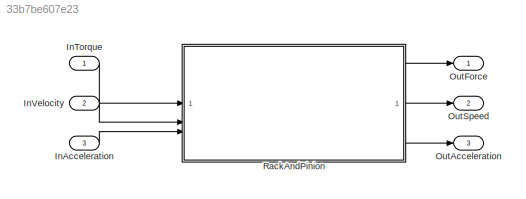
MODEL slx_33b7be607e23
KIND model
CONFIG AbsTol = auto
CONFIG EnableMultiTasking = off
CONFIG FixedStep = auto
CONFIG MaxStep = auto
CONFIG MinStep = auto
CONFIG RelTol = 1e-3
CONFIG SampleTimeConstraint = Unconstrained
CONFIG SolverName = VariableStepAuto
CONFIG StartTime = 0.0
CONFIG StopTime = 10.0
BLOCK [Inport] InAcceleration
  Port = 3
BLOCK [Inport] InTorque
BLOCK [Inport] InVelocity
  Port = 2
BLOCK [Outport] OutAcceleration
  Port = 3
BLOCK [Outport] OutForce
BLOCK [Outport] OutSpeed
  Port = 2
BLOCK [SubSystem] RackAndPinion
  J_pinion = 1e-6
  ReferencedSubsystem = RackAndPinion
  i_rp = 20000
  vis_friction_coef_rp = 0.002
LINE InAcceleration:1 -> RackAndPinion:3
LINE InTorque:1 -> RackAndPinion:1
LINE InVelocity:1 -> RackAndPinion:2
LINE RackAndPinion:1 -> OutForce:1
LINE RackAndPinion:2 -> OutSpeed:1
LINE RackAndPinion:3 -> OutAcceleration:1
